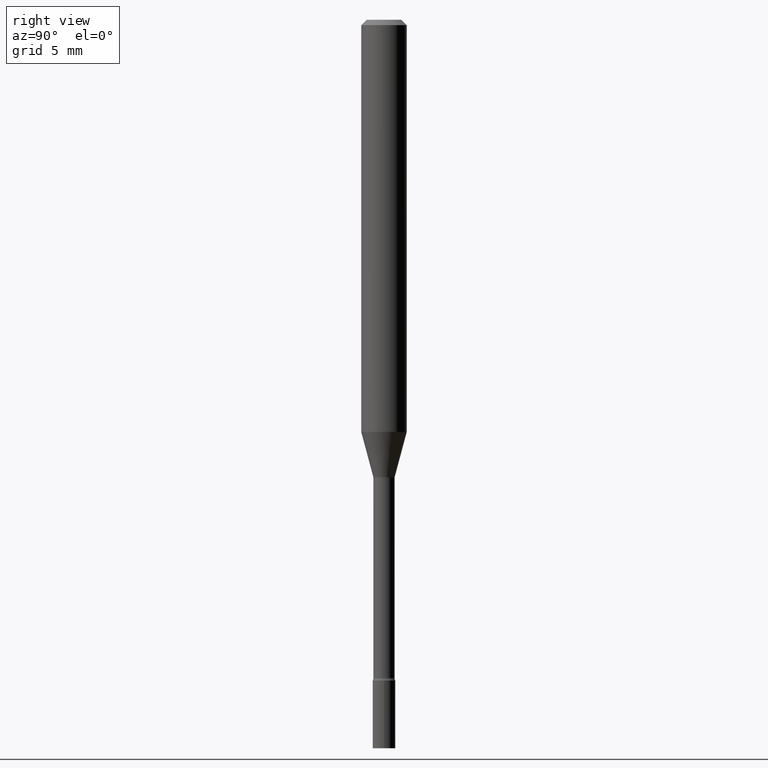
[diagram: clean part render]
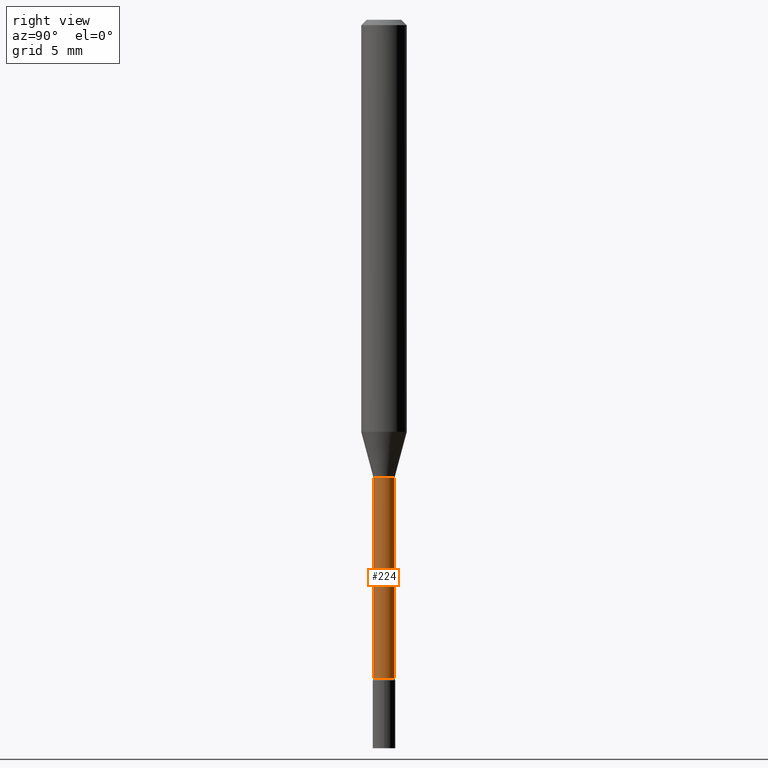
[diagram: same view with one face highlighted and labeled with its STEP entity id]
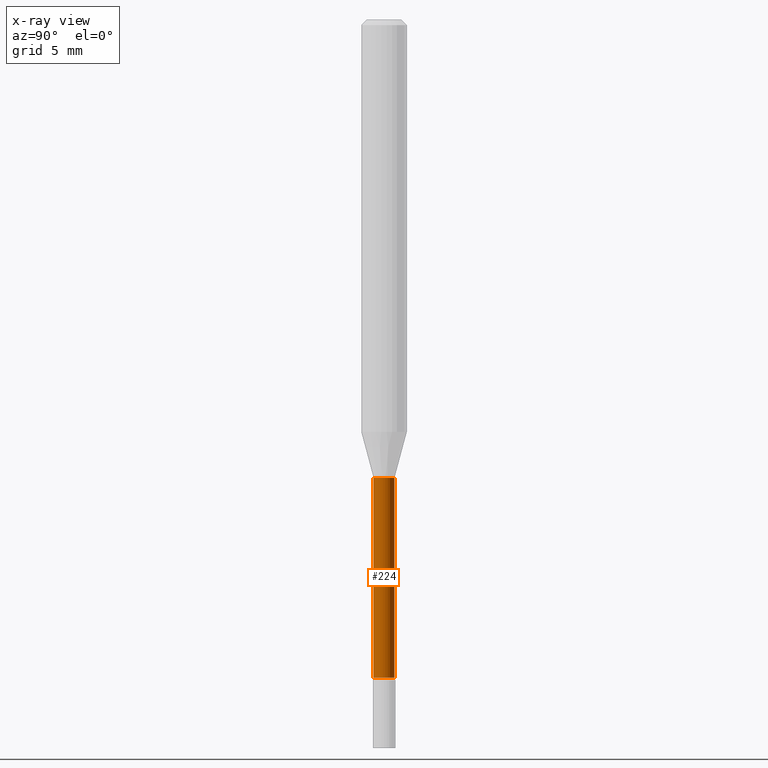
[diagram: x-ray of the same camera — body ghosted, the highlighted face saturated]
A machine part, right view. The second image highlights one B-rep face of the part: STEP entity #224.
The next image is the same camera in x-ray: the body ghosted, the highlighted face saturated — about 0% of this face is hidden behind the body in this view.
In plain terms, the highlighted cylindrical surface (edge-blend (fillet) strip) has radius 0.7404 mm, axis along (-0, 0, 1).
Its self-contained STEP definition (entity closure, byte-faithful):
#2 = ORIENTED_EDGE ( 'NONE', *, *, #262, .F. ) ;
#14 = DIRECTION ( 'NONE',  ( -2.445464431541942491E-29, 3.491487603581188597E-15, 1.000000000000000000 ) ) ;
#33 = DIRECTION ( 'NONE',  ( -6.982962677686265922E-15, -1.000000000000000000, 0.000000000000000000 ) ) ;
#39 = CIRCLE ( 'NONE', #377, 0.02915000000000004046 ) ;
#67 = FACE_OUTER_BOUND ( 'NONE', #493, .T. ) ;
#73 = ORIENTED_EDGE ( 'NONE', *, *, #261, .T. ) ;
#91 = VECTOR ( 'NONE', #14, 39.37007874015748143 ) ;
#110 = CARTESIAN_POINT ( 'NONE',  ( 0.000000000000000000, 0.000000000000000000, 0.000000000000000000 ) ) ;
#120 = DIRECTION ( 'NONE',  ( -2.445464431541942491E-29, 3.491487603581188597E-15, 1.000000000000000000 ) ) ;
#132 = VERTEX_POINT ( 'NONE', #179 ) ;
#138 = AXIS2_PLACEMENT_3D ( 'NONE', #356, #120, #33 ) ;
#143 = EDGE_CURVE ( 'NONE', #250, #345, #422, .T. ) ;
#170 = CIRCLE ( 'NONE', #138, 0.02914999999999999883 ) ;
#179 = CARTESIAN_POINT ( 'NONE',  ( -2.035533620545238968E-16, -0.02915000000000439115, -1.257974787463810973 ) ) ;
#182 = CARTESIAN_POINT ( 'NONE',  ( 2.071232074740693191E-16, 0.02915000000000001965, -1.017768636443917116E-16 ) ) ;
#185 = ORIENTED_EDGE ( 'NONE', *, *, #389, .F. ) ;
#186 = VECTOR ( 'NONE', #335, 39.37007874015748143 ) ;
#224 = ADVANCED_FACE ( 'NONE', ( #67 ), #468, .T. ) ;
#249 = LINE ( 'NONE', #282, #91 ) ;
#250 = VERTEX_POINT ( 'NONE', #397 ) ;
#261 = EDGE_CURVE ( 'NONE', #365, #250, #39, .T. ) ;
#262 = EDGE_CURVE ( 'NONE', #132, #345, #170, .T. ) ;
#282 = CARTESIAN_POINT ( 'NONE',  ( -2.035533620545548103E-16, -0.02915000000000001965, 1.017768636443917116E-16 ) ) ;
#300 = DIRECTION ( 'NONE',  ( -6.982962677686266711E-15, -1.000000000000000000, 3.491487603581188597E-15 ) ) ;
#312 = CARTESIAN_POINT ( 'NONE',  ( -2.035533620545107573E-16, -0.02915000000000635139, -1.806783525791634704 ) ) ;
#335 = DIRECTION ( 'NONE',  ( -2.445464431541942491E-29, 3.491487603581188597E-15, 1.000000000000000000 ) ) ;
#345 = VERTEX_POINT ( 'NONE', #482 ) ;
#351 = AXIS2_PLACEMENT_3D ( 'NONE', #110, #425, #300 ) ;
#356 = CARTESIAN_POINT ( 'NONE',  ( 3.076332598519284209E-29, -4.392203376047575769E-15, -1.257974787463810973 ) ) ;
#365 = VERTEX_POINT ( 'NONE', #312 ) ;
#377 = AXIS2_PLACEMENT_3D ( 'NONE', #440, #391, #518 ) ;
#389 = EDGE_CURVE ( 'NONE', #365, #132, #249, .T. ) ;
#391 = DIRECTION ( 'NONE',  ( -2.445464431541942491E-29, 3.491487603581188597E-15, 1.000000000000000000 ) ) ;
#397 = CARTESIAN_POINT ( 'NONE',  ( 2.136957277798946103E-16, 0.02914999999999373301, -1.806783525791634704 ) ) ;
#422 = LINE ( 'NONE', #182, #186 ) ;
#425 = DIRECTION ( 'NONE',  ( -2.445464431541942491E-29, 3.491487603581188597E-15, 1.000000000000000000 ) ) ;
#440 = CARTESIAN_POINT ( 'NONE',  ( 4.418424847819386153E-29, -6.308362282656206096E-15, -1.806783525791634704 ) ) ;
#468 = CYLINDRICAL_SURFACE ( 'NONE', #351, 0.02915000000000001965 ) ;
#482 = CARTESIAN_POINT ( 'NONE',  ( 2.071232074741134953E-16, 0.02914999999999560304, -1.257974787463810973 ) ) ;
#493 = EDGE_LOOP ( 'NONE', ( #73, #514, #2, #185 ) ) ;
#514 = ORIENTED_EDGE ( 'NONE', *, *, #143, .T. ) ;
#518 = DIRECTION ( 'NONE',  ( -6.982962677686266711E-15, -1.000000000000000000, 0.000000000000000000 ) ) ;